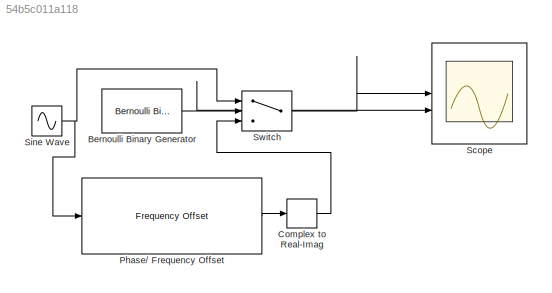
MODEL slx_54b5c011a118
KIND model
CONFIG AbsTol = auto
CONFIG EnableMultiTasking = off
CONFIG FixedStep = auto
CONFIG MaxStep = auto
CONFIG MinStep = auto
CONFIG RelTol = 1e-3
CONFIG SampleTimeConstraint = Unconstrained
CONFIG SolverName = VariableStepAuto
CONFIG StartTime = 0.0
CONFIG StopTime = 10
BLOCK [Reference] Bernoulli Binary Generator  REF=commrandsrc3/Bernoulli Binary
Generator
  SourceBlock = commrandsrc3/Bernoulli Binary\nGenerator
  SourceType = Bernoulli Binary Generator
BLOCK [ComplexToRealImag] Complex to Real-Imag
BLOCK [Reference] Phase// Frequency Offset  REF=commrflib2/Phase//
Frequency
Offset
  LibrarySourceBlock = commrfcorlib/Phase//\nFrequency\nOffset
  SourceBlock = commrflib2/Phase//\nFrequency\nOffset
  SourceType = Phase/Frequency Offset
BLOCK [Scope] Scope
  Floating = off
  NumInputPorts = 4
  ScopeSpecificationString = Simulink.scopes.TimeScopeBlockCfg('CurrentConfiguration', extmgr.ConfigurationSet(extmgr.Configuration('Core','General UI',true),extmgr.Configuration('Core','Source UI',true),extmgr.Configuration('Sources','WiredSimulink',true),extmgr.Configuration('Visuals','Time Domain',true,'SerializedDisplays',{struct('MinYLimReal','-1.25','MaxYLimReal','1.25','YLabelReal','','MinYLimMag','0.00000','MaxYLimMag...<+2029ch>
BLOCK [Sin] Sine Wave
  Frequency = 2*pi
  SampleTime = 0.01
BLOCK [Switch] Switch
  Criteria = u2 > Threshold
  InputSameDT = off
  SaturateOnIntegerOverflow = off
NET Bernoulli Binary Generator:1 -> Scope:2, Switch:2
LINE Complex to Real-Imag:1 -> Switch:3
LINE Phase// Frequency Offset:1 -> Complex to Real-Imag:1
NET Sine Wave:1 -> Phase// Frequency Offset:1, Switch:1
LINE Switch:1 -> Scope:1
note: NET lines group one-source signal fan-out (src -> all destinations, sorted); 1:1 wires keep LINE
